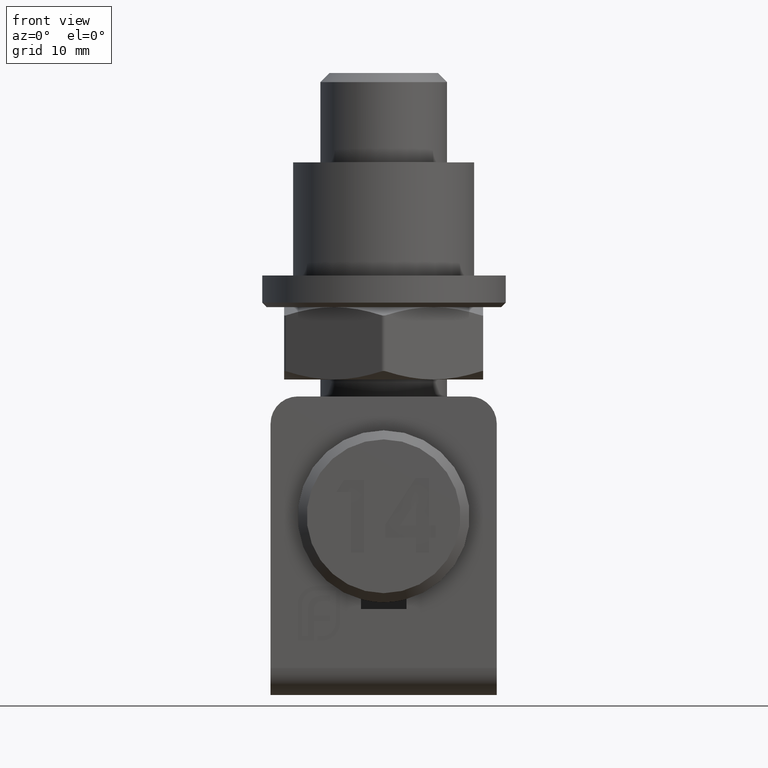
[diagram: clean part render]
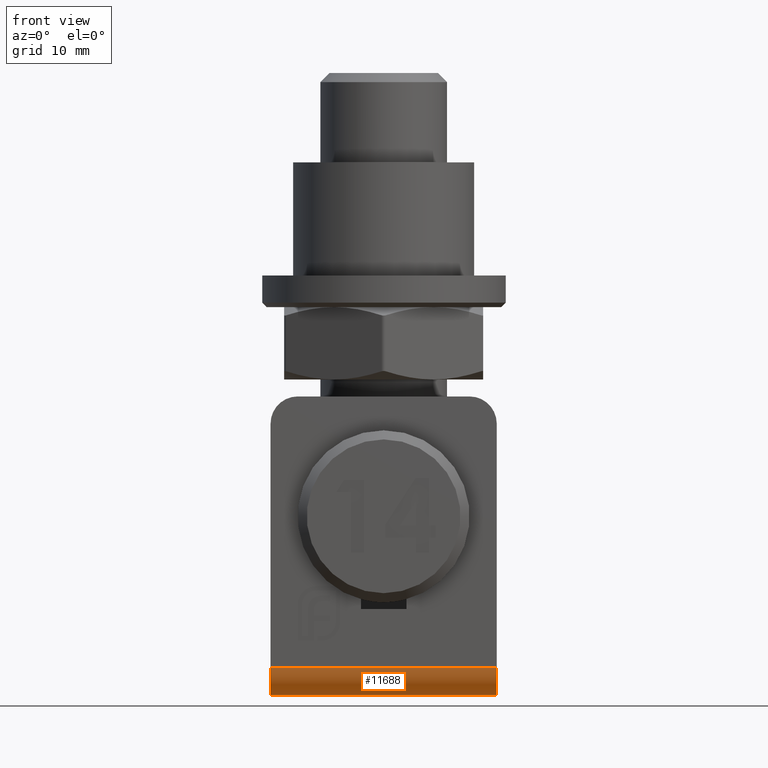
[diagram: same view with one face highlighted and labeled with its STEP entity id]
A machine part, front view. The second image highlights one B-rep face of the part: STEP entity #11688.
In plain terms, the highlighted cylindrical surface (edge-blend (fillet) strip) has radius 3 mm, axis along (-1, 0, 0).
Its self-contained STEP definition (entity closure, byte-faithful):
#191 = AXIS2_PLACEMENT_3D ( 'NONE', #18983, #13803, #18730 ) ;
#518 = VERTEX_POINT ( 'NONE', #1221 ) ;
#1221 = CARTESIAN_POINT ( 'NONE',  ( 12.50000000000000000, -12.99999999999999822, -15.00000000000000355 ) ) ;
#1591 = CARTESIAN_POINT ( 'NONE',  ( 12.50000000000000000, -12.99999999999999822, -15.00000000000000355 ) ) ;
#1966 = AXIS2_PLACEMENT_3D ( 'NONE', #6438, #8211, #17873 ) ;
#2424 = DIRECTION ( 'NONE',  ( 0.000000000000000000, 0.000000000000000000, 1.000000000000000000 ) ) ;
#2477 = ORIENTED_EDGE ( 'NONE', *, *, #18351, .F. ) ;
#2604 = CARTESIAN_POINT ( 'NONE',  ( 12.50000000000000000, -9.999999999999998224, -18.00000000000000355 ) ) ;
#3361 = FACE_OUTER_BOUND ( 'NONE', #13905, .T. ) ;
#4116 = DIRECTION ( 'NONE',  ( -1.000000000000000000, 0.000000000000000000, 0.000000000000000000 ) ) ;
#4956 = EDGE_CURVE ( 'NONE', #20128, #7896, #20351, .T. ) ;
#6438 = CARTESIAN_POINT ( 'NONE',  ( -12.50000000000000000, -9.999999999999998224, -15.00000000000000355 ) ) ;
#7896 = VERTEX_POINT ( 'NONE', #15762 ) ;
#8116 = CYLINDRICAL_SURFACE ( 'NONE', #15941, 2.999999999999999112 ) ;
#8211 = DIRECTION ( 'NONE',  ( -1.000000000000000000, -0.000000000000000000, -0.000000000000000000 ) ) ;
#8917 = CARTESIAN_POINT ( 'NONE',  ( 12.50000000000000000, -9.999999999999998224, -15.00000000000000355 ) ) ;
#9118 = VECTOR ( 'NONE', #15816, 1000.000000000000000 ) ;
#10460 = CARTESIAN_POINT ( 'NONE',  ( 12.50000000000000000, -9.999999999999991118, -18.00000000000000355 ) ) ;
#11247 = EDGE_CURVE ( 'NONE', #518, #20128, #17657, .T. ) ;
#11688 = ADVANCED_FACE ( 'NONE', ( #3361 ), #8116, .T. ) ;
#12009 = ORIENTED_EDGE ( 'NONE', *, *, #20799, .F. ) ;
#13803 = DIRECTION ( 'NONE',  ( 1.000000000000000000, 0.000000000000000000, 0.000000000000000000 ) ) ;
#13905 = EDGE_LOOP ( 'NONE', ( #17847, #2477, #12009, #19793 ) ) ;
#15431 = CIRCLE ( 'NONE', #1966, 2.999999999999999112 ) ;
#15762 = CARTESIAN_POINT ( 'NONE',  ( -12.50000000000000000, -9.999999999999991118, -18.00000000000000355 ) ) ;
#15816 = DIRECTION ( 'NONE',  ( -1.000000000000000000, 0.000000000000000000, 0.000000000000000000 ) ) ;
#15941 = AXIS2_PLACEMENT_3D ( 'NONE', #8917, #4116, #2424 ) ;
#16290 = DIRECTION ( 'NONE',  ( 1.000000000000000000, -0.000000000000000000, -0.000000000000000000 ) ) ;
#17045 = VERTEX_POINT ( 'NONE', #19035 ) ;
#17657 = CIRCLE ( 'NONE', #191, 2.999999999999999112 ) ;
#17847 = ORIENTED_EDGE ( 'NONE', *, *, #11247, .F. ) ;
#17873 = DIRECTION ( 'NONE',  ( 0.000000000000000000, 0.000000000000000000, -1.000000000000000000 ) ) ;
#18351 = EDGE_CURVE ( 'NONE', #17045, #518, #19340, .T. ) ;
#18730 = DIRECTION ( 'NONE',  ( 0.000000000000000000, 0.000000000000000000, -1.000000000000000000 ) ) ;
#18983 = CARTESIAN_POINT ( 'NONE',  ( 12.50000000000000000, -9.999999999999998224, -15.00000000000000355 ) ) ;
#19035 = CARTESIAN_POINT ( 'NONE',  ( -12.50000000000000000, -12.99999999999999822, -15.00000000000000355 ) ) ;
#19340 = LINE ( 'NONE', #1591, #19568 ) ;
#19568 = VECTOR ( 'NONE', #16290, 1000.000000000000000 ) ;
#19793 = ORIENTED_EDGE ( 'NONE', *, *, #4956, .F. ) ;
#20128 = VERTEX_POINT ( 'NONE', #10460 ) ;
#20351 = LINE ( 'NONE', #2604, #9118 ) ;
#20799 = EDGE_CURVE ( 'NONE', #7896, #17045, #15431, .T. ) ;